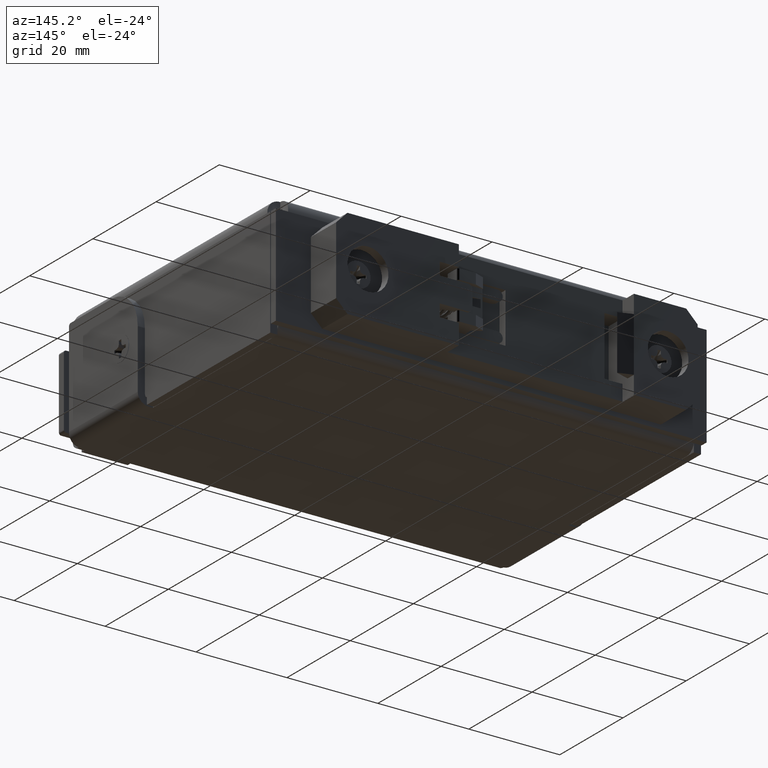
[diagram: clean part render]
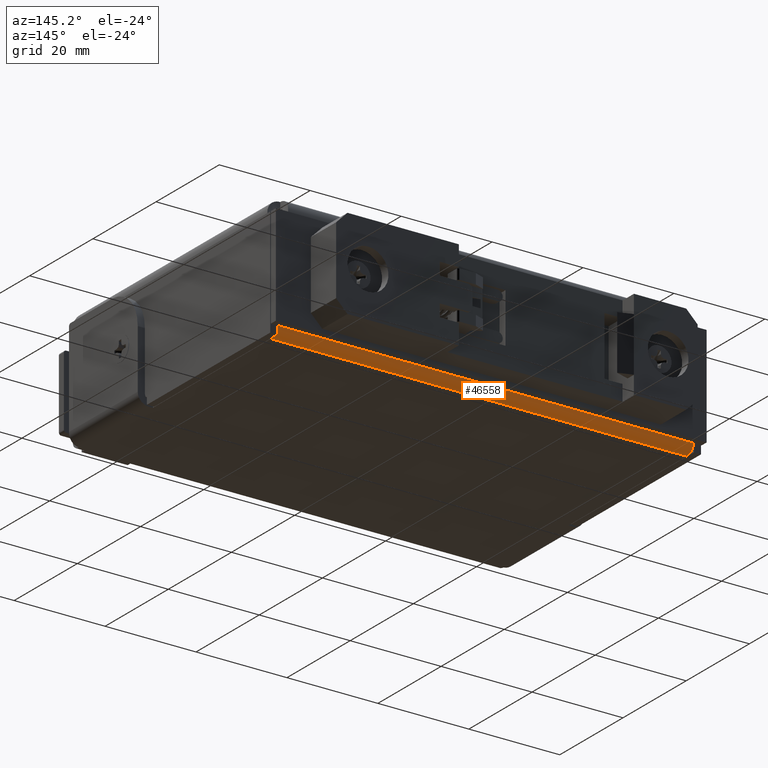
[diagram: same view with one face highlighted and labeled with its STEP entity id]
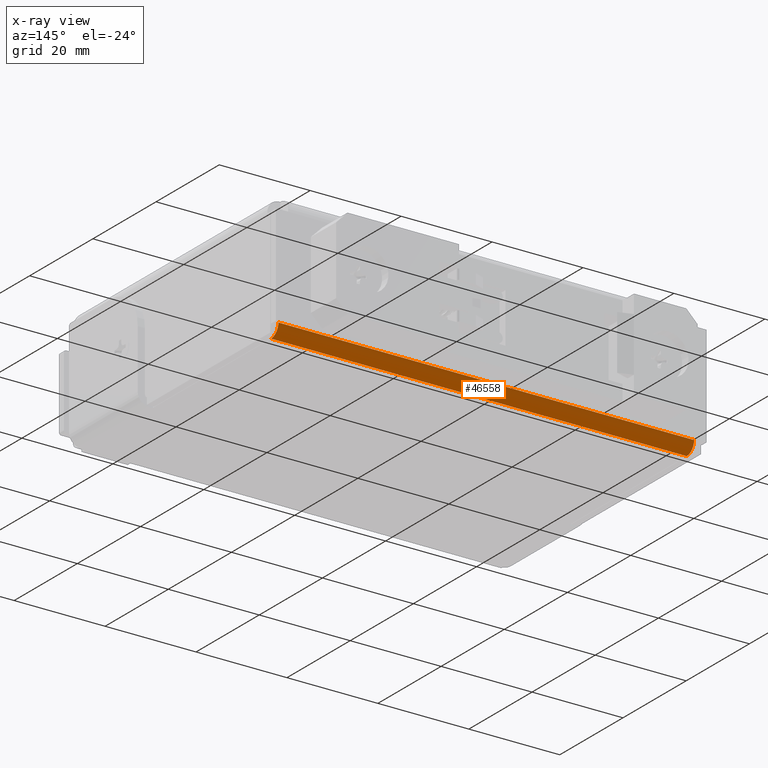
[diagram: x-ray of the same camera — body ghosted, the highlighted face saturated]
A machine part, auxiliary view. The second image highlights one B-rep face of the part: STEP entity #46558.
The next image is the same camera in x-ray: the body ghosted, the highlighted face saturated — about 0% of this face is hidden behind the body in this view.
In plain terms, the highlighted cylindrical surface (edge-blend (fillet) strip) has radius 2.3368 mm, axis along (1, 0, 0).
Its self-contained STEP definition (entity closure, byte-faithful):
#4144=FACE_OUTER_BOUND('',#6741,.T.);
#6741=EDGE_LOOP('',(#34263,#34264,#34265,#34266));
#9728=LINE('',#70600,#14873);
#9729=LINE('',#70604,#14874);
#14873=VECTOR('',#53056,0.393700787401575);
#14874=VECTOR('',#53059,0.393700787401575);
#19332=CIRCLE('',#48904,0.092);
#19333=CIRCLE('',#48905,0.092);
#21049=VERTEX_POINT('',#70277);
#21082=VERTEX_POINT('',#70599);
#21083=VERTEX_POINT('',#70601);
#21084=VERTEX_POINT('',#70603);
#25966=EDGE_CURVE('',#21049,#21082,#9728,.T.);
#25967=EDGE_CURVE('',#21049,#21083,#19332,.T.);
#25968=EDGE_CURVE('',#21084,#21083,#9729,.T.);
#25969=EDGE_CURVE('',#21084,#21082,#19333,.T.);
#34263=ORIENTED_EDGE('',*,*,#25966,.F.);
#34264=ORIENTED_EDGE('',*,*,#25967,.T.);
#34265=ORIENTED_EDGE('',*,*,#25968,.F.);
#34266=ORIENTED_EDGE('',*,*,#25969,.T.);
#45695=CYLINDRICAL_SURFACE('',#48903,0.092);
#46558=ADVANCED_FACE('',(#4144),#45695,.T.);
#48903=AXIS2_PLACEMENT_3D('',#70598,#53054,#53055);
#48904=AXIS2_PLACEMENT_3D('',#70602,#53057,#53058);
#48905=AXIS2_PLACEMENT_3D('',#70605,#53060,#53061);
#53054=DIRECTION('center_axis',(1.,0.,0.));
#53055=DIRECTION('ref_axis',(0.,0.,-1.));
#53056=DIRECTION('',(-1.,0.,0.));
#53057=DIRECTION('center_axis',(-1.,0.,0.));
#53058=DIRECTION('ref_axis',(0.,1.,-1.781639995868E-15));
#53059=DIRECTION('',(1.,0.,0.));
#53060=DIRECTION('center_axis',(1.,0.,0.));
#53061=DIRECTION('ref_axis',(0.,0.,-1.));
#70277=CARTESIAN_POINT('',(1.8,0.812,0.0919999999999999));
#70598=CARTESIAN_POINT('Origin',(0.,0.72,0.092));
#70599=CARTESIAN_POINT('',(-1.8,0.812,0.0919999999999999));
#70600=CARTESIAN_POINT('',(0.,0.812,0.0919999999999999));
#70601=CARTESIAN_POINT('',(1.8,0.72,0.));
#70602=CARTESIAN_POINT('Origin',(1.8,0.72,0.092));
#70603=CARTESIAN_POINT('',(-1.8,0.72,0.));
#70604=CARTESIAN_POINT('',(0.9,0.72,0.));
#70605=CARTESIAN_POINT('Origin',(-1.8,0.72,0.092));